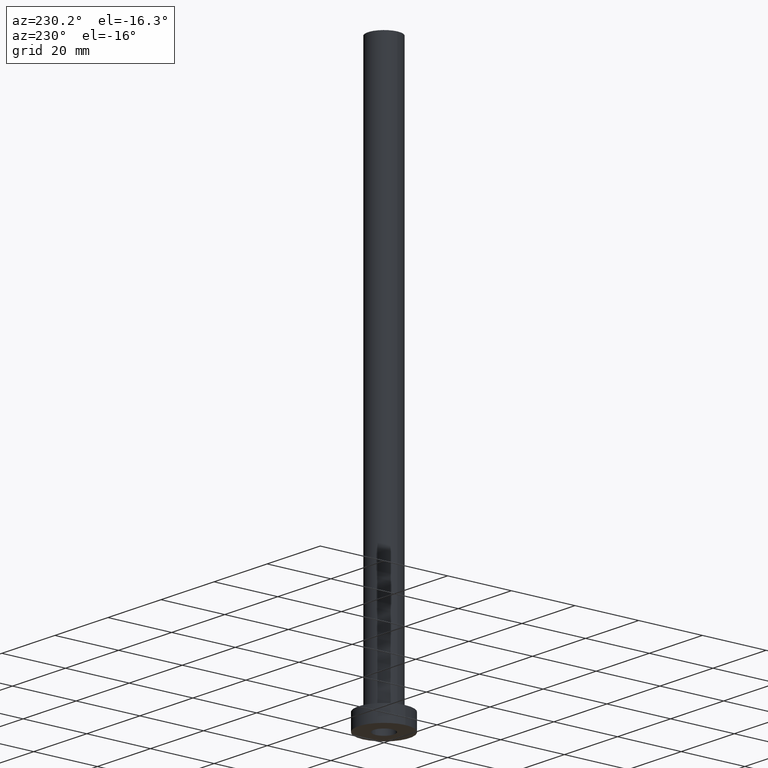
[diagram: clean part render]
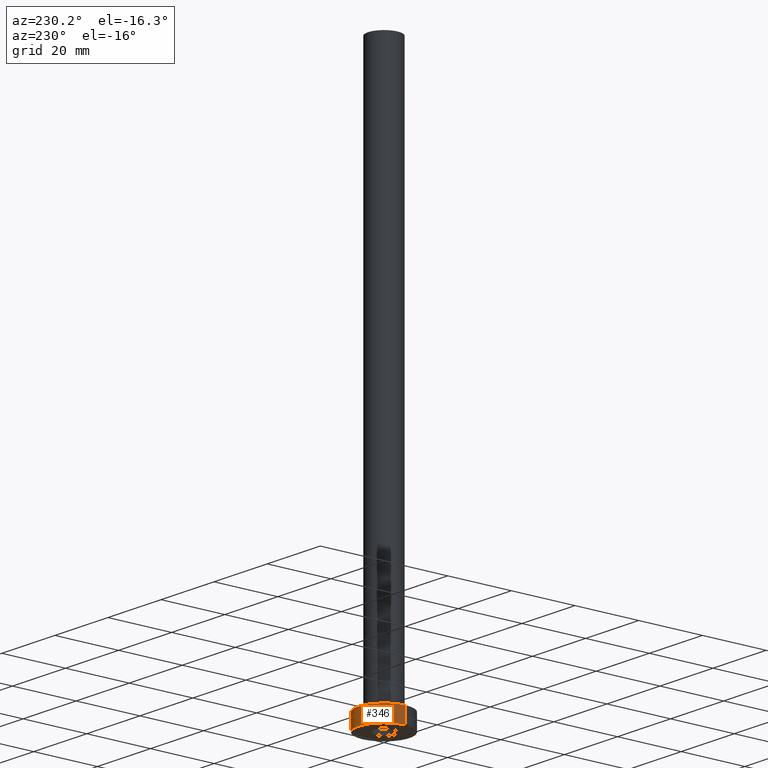
[diagram: same view with one face highlighted and labeled with its STEP entity id]
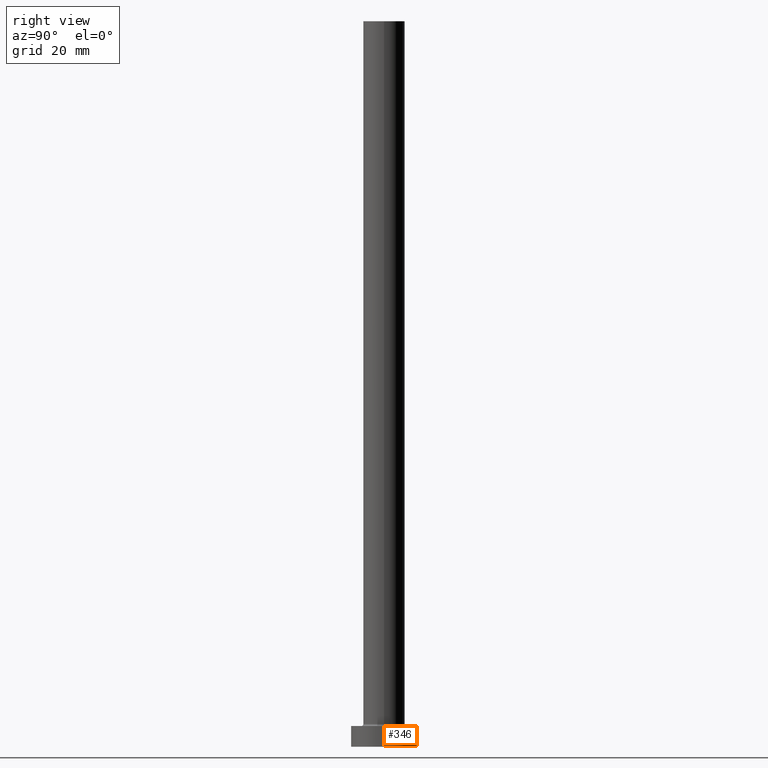
[diagram: same view with one face highlighted and labeled with its STEP entity id]
A machine part, auxiliary view. The second image highlights one B-rep face of the part: STEP entity #346.
A second angle (right view) of the same face is appended — the face is thin or edge-on in the first view.
In plain terms, the highlighted cylindrical surface (edge-blend (fillet) strip) has radius 8 mm, axis along (-0, -0, -1).
Its self-contained STEP definition (entity closure, byte-faithful):
#24 = DIRECTION ( 'NONE',  ( -0.000000000000000000, -0.000000000000000000, -1.000000000000000000 ) ) ;
#43 = CYLINDRICAL_SURFACE ( 'NONE', #316, 8.000000000000000000 ) ;
#45 = FACE_OUTER_BOUND ( 'NONE', #377, .T. ) ;
#49 = EDGE_CURVE ( 'NONE', #308, #437, #344, .T. ) ;
#93 = EDGE_CURVE ( 'NONE', #230, #206, #257, .T. ) ;
#100 = CARTESIAN_POINT ( 'NONE',  ( 8.000000000000000000, 9.797174393178825657E-16, 5.000000000000000000 ) ) ;
#119 = CIRCLE ( 'NONE', #244, 8.000000000000000000 ) ;
#126 = EDGE_CURVE ( 'NONE', #308, #230, #119, .T. ) ;
#129 = CARTESIAN_POINT ( 'NONE',  ( 8.000000000000000000, 9.797174393178825657E-16, 5.000000000000000000 ) ) ;
#150 = CARTESIAN_POINT ( 'NONE',  ( -8.000000000000000000, 0.000000000000000000, 0.000000000000000000 ) ) ;
#154 = DIRECTION ( 'NONE',  ( -1.000000000000000000, 0.000000000000000000, 0.000000000000000000 ) ) ;
#161 = CARTESIAN_POINT ( 'NONE',  ( 0.000000000000000000, 0.000000000000000000, 5.000000000000000000 ) ) ;
#172 = CARTESIAN_POINT ( 'NONE',  ( 8.000000000000000000, 9.797174393178825657E-16, 0.000000000000000000 ) ) ;
#192 = ORIENTED_EDGE ( 'NONE', *, *, #49, .T. ) ;
#203 = DIRECTION ( 'NONE',  ( -0.000000000000000000, -0.000000000000000000, -1.000000000000000000 ) ) ;
#206 = VERTEX_POINT ( 'NONE', #150 ) ;
#217 = AXIS2_PLACEMENT_3D ( 'NONE', #326, #455, #219 ) ;
#219 = DIRECTION ( 'NONE',  ( 1.000000000000000000, 0.000000000000000000, 0.000000000000000000 ) ) ;
#221 = CARTESIAN_POINT ( 'NONE',  ( -8.000000000000000000, 0.000000000000000000, 5.000000000000000000 ) ) ;
#223 = EDGE_CURVE ( 'NONE', #437, #206, #226, .T. ) ;
#226 = CIRCLE ( 'NONE', #217, 8.000000000000000000 ) ;
#230 = VERTEX_POINT ( 'NONE', #221 ) ;
#233 = ORIENTED_EDGE ( 'NONE', *, *, #93, .F. ) ;
#244 = AXIS2_PLACEMENT_3D ( 'NONE', #414, #422, #283 ) ;
#257 = LINE ( 'NONE', #386, #425 ) ;
#277 = DIRECTION ( 'NONE',  ( -0.000000000000000000, -0.000000000000000000, -1.000000000000000000 ) ) ;
#283 = DIRECTION ( 'NONE',  ( 1.000000000000000000, 0.000000000000000000, 0.000000000000000000 ) ) ;
#304 = VECTOR ( 'NONE', #277, 1000.000000000000000 ) ;
#308 = VERTEX_POINT ( 'NONE', #100 ) ;
#315 = ORIENTED_EDGE ( 'NONE', *, *, #126, .F. ) ;
#316 = AXIS2_PLACEMENT_3D ( 'NONE', #161, #203, #154 ) ;
#326 = CARTESIAN_POINT ( 'NONE',  ( 0.000000000000000000, 0.000000000000000000, 0.000000000000000000 ) ) ;
#344 = LINE ( 'NONE', #129, #304 ) ;
#346 = ADVANCED_FACE ( 'NONE', ( #45 ), #43, .T. ) ;
#377 = EDGE_LOOP ( 'NONE', ( #315, #192, #428, #233 ) ) ;
#386 = CARTESIAN_POINT ( 'NONE',  ( -8.000000000000000000, 0.000000000000000000, 5.000000000000000000 ) ) ;
#414 = CARTESIAN_POINT ( 'NONE',  ( 0.000000000000000000, 0.000000000000000000, 5.000000000000000000 ) ) ;
#422 = DIRECTION ( 'NONE',  ( 0.000000000000000000, 0.000000000000000000, 1.000000000000000000 ) ) ;
#425 = VECTOR ( 'NONE', #24, 1000.000000000000000 ) ;
#428 = ORIENTED_EDGE ( 'NONE', *, *, #223, .T. ) ;
#437 = VERTEX_POINT ( 'NONE', #172 ) ;
#455 = DIRECTION ( 'NONE',  ( 0.000000000000000000, 0.000000000000000000, 1.000000000000000000 ) ) ;